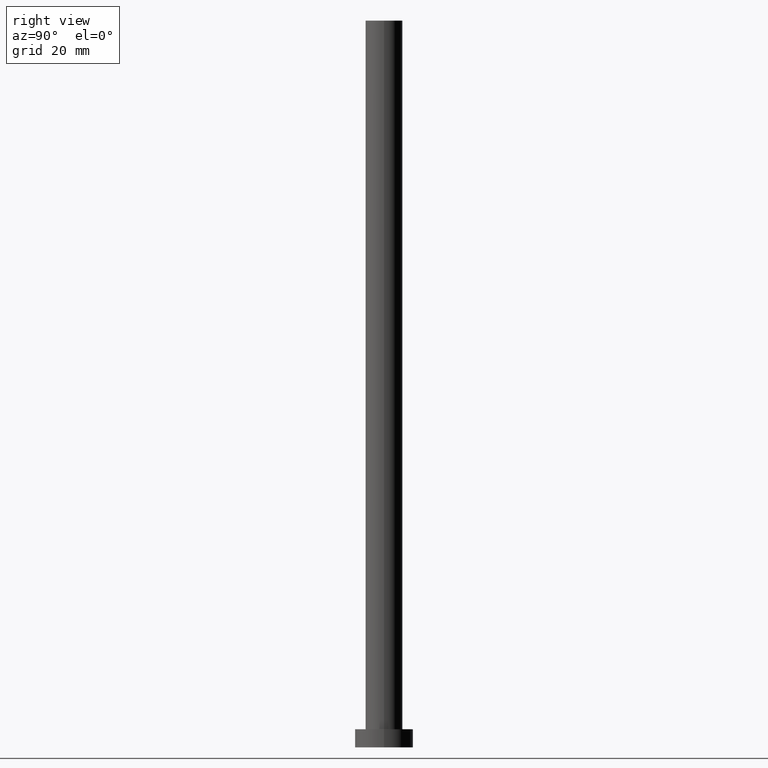
[diagram: clean part render]
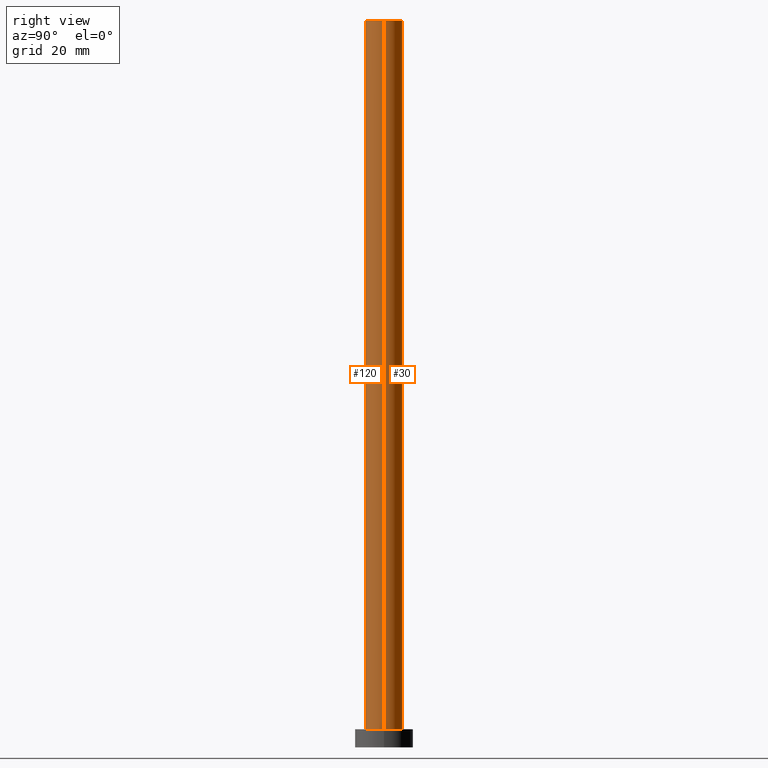
[diagram: same view with one multi-face feature highlighted, each face labeled with its STEP entity id]
A machine part, right view. The highlighted faces form ONE feature: a constant-radius fillet chain: 2 tangent blend faces with common blend radius 5.1 mm. The faces share edges in the B-rep.
Their STEP definitions:
[1] entity #30 (Cylinder):
#8 = CARTESIAN_POINT ( 'NONE',  ( 5.099999999999999645, 6.245698675651500839E-16, 200.0000000000000000 ) ) ;
#9 = DIRECTION ( 'NONE',  ( 1.000000000000000000, 0.000000000000000000, 0.000000000000000000 ) ) ;
#14 = DIRECTION ( 'NONE',  ( 1.000000000000000000, 0.000000000000000000, 0.000000000000000000 ) ) ;
#23 = ORIENTED_EDGE ( 'NONE', *, *, #133, .F. ) ;
#30 = ADVANCED_FACE ( 'NONE', ( #148 ), #108, .T. ) ;
#31 = DIRECTION ( 'NONE',  ( -1.000000000000000000, 0.000000000000000000, 0.000000000000000000 ) ) ;
#32 = EDGE_CURVE ( 'NONE', #60, #109, #33, .T. ) ;
#33 = LINE ( 'NONE', #8, #255 ) ;
#47 = LINE ( 'NONE', #125, #104 ) ;
#60 = VERTEX_POINT ( 'NONE', #90 ) ;
#66 = DIRECTION ( 'NONE',  ( -0.000000000000000000, -0.000000000000000000, -1.000000000000000000 ) ) ;
#67 = AXIS2_PLACEMENT_3D ( 'NONE', #72, #211, #9 ) ;
#68 = EDGE_CURVE ( 'NONE', #109, #156, #73, .T. ) ;
#72 = CARTESIAN_POINT ( 'NONE',  ( 0.000000000000000000, 0.000000000000000000, 200.0000000000000000 ) ) ;
#73 = CIRCLE ( 'NONE', #117, 5.099999999999999645 ) ;
#76 = EDGE_LOOP ( 'NONE', ( #198, #216, #118, #23 ) ) ;
#86 = DIRECTION ( 'NONE',  ( 0.000000000000000000, 0.000000000000000000, 1.000000000000000000 ) ) ;
#90 = CARTESIAN_POINT ( 'NONE',  ( 5.099999999999999645, 6.245698675651500839E-16, 200.0000000000000000 ) ) ;
#104 = VECTOR ( 'NONE', #249, 1000.000000000000000 ) ;
#108 = CYLINDRICAL_SURFACE ( 'NONE', #140, 5.099999999999999645 ) ;
#109 = VERTEX_POINT ( 'NONE', #183 ) ;
#117 = AXIS2_PLACEMENT_3D ( 'NONE', #130, #86, #14 ) ;
#118 = ORIENTED_EDGE ( 'NONE', *, *, #68, .T. ) ;
#121 = VERTEX_POINT ( 'NONE', #208 ) ;
#125 = CARTESIAN_POINT ( 'NONE',  ( -5.099999999999999645, 0.000000000000000000, 200.0000000000000000 ) ) ;
#130 = CARTESIAN_POINT ( 'NONE',  ( 0.000000000000000000, 0.000000000000000000, 5.000000000000000000 ) ) ;
#131 = CARTESIAN_POINT ( 'NONE',  ( 0.000000000000000000, 0.000000000000000000, 200.0000000000000000 ) ) ;
#133 = EDGE_CURVE ( 'NONE', #121, #156, #47, .T. ) ;
#140 = AXIS2_PLACEMENT_3D ( 'NONE', #131, #66, #31 ) ;
#148 = FACE_OUTER_BOUND ( 'NONE', #76, .T. ) ;
#150 = CARTESIAN_POINT ( 'NONE',  ( -5.099999999999999645, 0.000000000000000000, 5.000000000000000000 ) ) ;
#156 = VERTEX_POINT ( 'NONE', #150 ) ;
#160 = EDGE_CURVE ( 'NONE', #60, #121, #234, .T. ) ;
#183 = CARTESIAN_POINT ( 'NONE',  ( 5.099999999999999645, 6.245698675651500839E-16, 5.000000000000000000 ) ) ;
#198 = ORIENTED_EDGE ( 'NONE', *, *, #160, .F. ) ;
#208 = CARTESIAN_POINT ( 'NONE',  ( -5.099999999999999645, 0.000000000000000000, 200.0000000000000000 ) ) ;
#211 = DIRECTION ( 'NONE',  ( 0.000000000000000000, 0.000000000000000000, 1.000000000000000000 ) ) ;
#216 = ORIENTED_EDGE ( 'NONE', *, *, #32, .T. ) ;
#225 = DIRECTION ( 'NONE',  ( -0.000000000000000000, -0.000000000000000000, -1.000000000000000000 ) ) ;
#234 = CIRCLE ( 'NONE', #67, 5.099999999999999645 ) ;
#249 = DIRECTION ( 'NONE',  ( -0.000000000000000000, -0.000000000000000000, -1.000000000000000000 ) ) ;
#255 = VECTOR ( 'NONE', #225, 1000.000000000000000 ) ;
[2] entity #120 (Cylinder):
#4 = AXIS2_PLACEMENT_3D ( 'NONE', #206, #132, #146 ) ;
#8 = CARTESIAN_POINT ( 'NONE',  ( 5.099999999999999645, 6.245698675651500839E-16, 200.0000000000000000 ) ) ;
#17 = CARTESIAN_POINT ( 'NONE',  ( 0.000000000000000000, 0.000000000000000000, 5.000000000000000000 ) ) ;
#32 = EDGE_CURVE ( 'NONE', #60, #109, #33, .T. ) ;
#33 = LINE ( 'NONE', #8, #255 ) ;
#47 = LINE ( 'NONE', #125, #104 ) ;
#55 = DIRECTION ( 'NONE',  ( 0.000000000000000000, 0.000000000000000000, 1.000000000000000000 ) ) ;
#59 = ORIENTED_EDGE ( 'NONE', *, *, #233, .T. ) ;
#60 = VERTEX_POINT ( 'NONE', #90 ) ;
#77 = DIRECTION ( 'NONE',  ( 1.000000000000000000, 0.000000000000000000, 0.000000000000000000 ) ) ;
#90 = CARTESIAN_POINT ( 'NONE',  ( 5.099999999999999645, 6.245698675651500839E-16, 200.0000000000000000 ) ) ;
#98 = AXIS2_PLACEMENT_3D ( 'NONE', #17, #152, #77 ) ;
#104 = VECTOR ( 'NONE', #249, 1000.000000000000000 ) ;
#109 = VERTEX_POINT ( 'NONE', #183 ) ;
#110 = ORIENTED_EDGE ( 'NONE', *, *, #133, .T. ) ;
#120 = ADVANCED_FACE ( 'NONE', ( #229 ), #167, .T. ) ;
#121 = VERTEX_POINT ( 'NONE', #208 ) ;
#125 = CARTESIAN_POINT ( 'NONE',  ( -5.099999999999999645, 0.000000000000000000, 200.0000000000000000 ) ) ;
#132 = DIRECTION ( 'NONE',  ( -0.000000000000000000, -0.000000000000000000, -1.000000000000000000 ) ) ;
#133 = EDGE_CURVE ( 'NONE', #121, #156, #47, .T. ) ;
#146 = DIRECTION ( 'NONE',  ( -1.000000000000000000, 0.000000000000000000, 0.000000000000000000 ) ) ;
#150 = CARTESIAN_POINT ( 'NONE',  ( -5.099999999999999645, 0.000000000000000000, 5.000000000000000000 ) ) ;
#151 = ORIENTED_EDGE ( 'NONE', *, *, #194, .F. ) ;
#152 = DIRECTION ( 'NONE',  ( 0.000000000000000000, 0.000000000000000000, 1.000000000000000000 ) ) ;
#153 = CARTESIAN_POINT ( 'NONE',  ( 0.000000000000000000, 0.000000000000000000, 200.0000000000000000 ) ) ;
#156 = VERTEX_POINT ( 'NONE', #150 ) ;
#163 = EDGE_LOOP ( 'NONE', ( #182, #151, #110, #59 ) ) ;
#167 = CYLINDRICAL_SURFACE ( 'NONE', #4, 5.099999999999999645 ) ;
#174 = CIRCLE ( 'NONE', #245, 5.099999999999999645 ) ;
#182 = ORIENTED_EDGE ( 'NONE', *, *, #32, .F. ) ;
#183 = CARTESIAN_POINT ( 'NONE',  ( 5.099999999999999645, 6.245698675651500839E-16, 5.000000000000000000 ) ) ;
#194 = EDGE_CURVE ( 'NONE', #121, #60, #174, .T. ) ;
#206 = CARTESIAN_POINT ( 'NONE',  ( 0.000000000000000000, 0.000000000000000000, 200.0000000000000000 ) ) ;
#207 = CIRCLE ( 'NONE', #98, 5.099999999999999645 ) ;
#208 = CARTESIAN_POINT ( 'NONE',  ( -5.099999999999999645, 0.000000000000000000, 200.0000000000000000 ) ) ;
#225 = DIRECTION ( 'NONE',  ( -0.000000000000000000, -0.000000000000000000, -1.000000000000000000 ) ) ;
#229 = FACE_OUTER_BOUND ( 'NONE', #163, .T. ) ;
#233 = EDGE_CURVE ( 'NONE', #156, #109, #207, .T. ) ;
#245 = AXIS2_PLACEMENT_3D ( 'NONE', #153, #55, #254 ) ;
#249 = DIRECTION ( 'NONE',  ( -0.000000000000000000, -0.000000000000000000, -1.000000000000000000 ) ) ;
#254 = DIRECTION ( 'NONE',  ( 1.000000000000000000, 0.000000000000000000, 0.000000000000000000 ) ) ;
#255 = VECTOR ( 'NONE', #225, 1000.000000000000000 ) ;